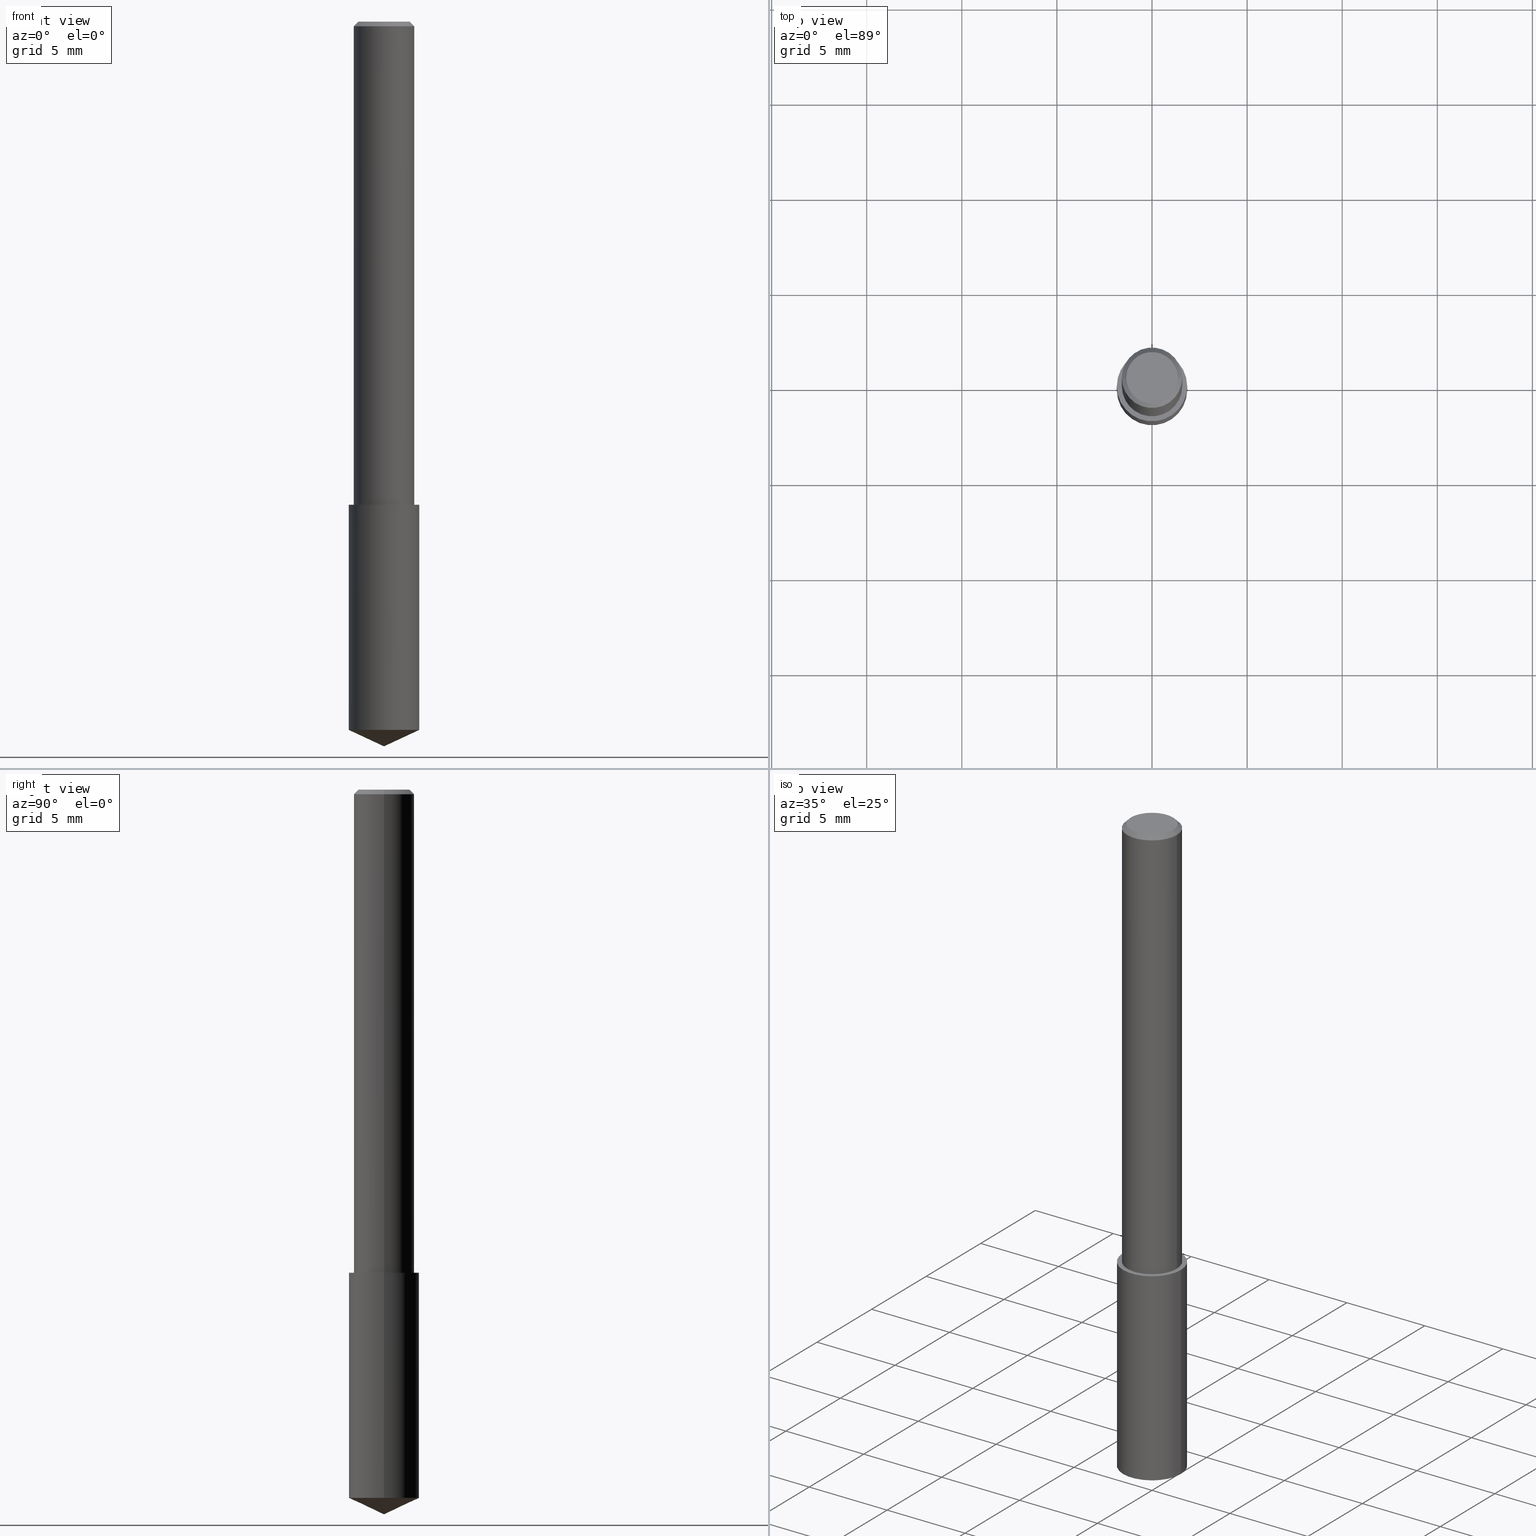
[diagram: canonical four-view strip — front | top / right | iso, engineering-drawing reading convention]
A machine part, canonical four-view strip (front | top / right | iso — engineering-drawing reading convention). The complete STEP part file that produces these views, byte-faithful:
ISO-10303-21;
HEADER;
FILE_DESCRIPTION (( 'STEP AP203' ),
    '1' );
FILE_NAME ('06084.STEP',
    '2024-04-30T18:19:50',
    ( '' ),
    ( '' ),
    'SwSTEP 2.0',
    'SolidWorks 2023',
    '' );
FILE_SCHEMA (( 'CONFIG_CONTROL_DESIGN' ));
ENDSEC;

DATA;
#1 = CARTESIAN_POINT ( 'NONE',  ( 0.000000000000000000, 0.000000000000000000, 0.000000000000000000 ) ) ;
#2 = CARTESIAN_POINT ( 'NONE',  ( 2.445468806185136877E-29, -3.491481338843145977E-15, -1.000000000000000222 ) ) ;
#3 = VECTOR ( 'NONE', #308, 39.37007874015748143 ) ;
#4 = DIRECTION ( 'NONE',  ( 1.000000000000000000, -6.982962677686266711E-15, 4.876176628004948512E-29 ) ) ;
#5 = ORIENTED_EDGE ( 'NONE', *, *, #142, .T. ) ;
#6 = ADVANCED_FACE ( 'NONE', ( #196 ), #194, .F. ) ;
#7 = VECTOR ( 'NONE', #336, 39.37007874015748143 ) ;
#8 = SECURITY_CLASSIFICATION ( '', '', #76 ) ;
#9 = EDGE_CURVE ( 'NONE', #104, #272, #112, .T. ) ;
#10 = ORIENTED_EDGE ( 'NONE', *, *, #85, .T. ) ;
#11 = EDGE_CURVE ( 'NONE', #93, #97, #141, .T. ) ;
#12 = AXIS2_PLACEMENT_3D ( 'NONE', #321, #295, #165 ) ;
#13 = VECTOR ( 'NONE', #117, 39.37007874015748854 ) ;
#14 = PRODUCT_DEFINITION_SHAPE ( 'NONE', 'NONE',  #52 ) ;
#15 = ADVANCED_FACE ( 'NONE', ( #215 ), #86, .T. ) ;
#16 = ORIENTED_EDGE ( 'NONE', *, *, #74, .F. ) ;
#17 = DIRECTION ( 'NONE',  ( -2.445468806185136597E-29, 3.491481338843145583E-15, 1.000000000000000000 ) ) ;
#18 = ORIENTED_EDGE ( 'NONE', *, *, #140, .T. ) ;
#19 = FACE_OUTER_BOUND ( 'NONE', #158, .T. ) ;
#20 = CIRCLE ( 'NONE', #213, 0.05312499999999999861 ) ;
#21 = VERTEX_POINT ( 'NONE', #154 ) ;
#22 = EDGE_CURVE ( 'NONE', #90, #272, #278, .T. ) ;
#23 = DESIGN_CONTEXT ( 'detailed design', #81, 'design' ) ;
#24 = COORDINATED_UNIVERSAL_TIME_OFFSET ( 5, 0, .BEHIND. ) ;
#25 = AXIS2_PLACEMENT_3D ( 'NONE', #312, #37, #38 ) ;
#26 = DATE_AND_TIME ( #103, #236 ) ;
#27 = DIRECTION ( 'NONE',  ( 1.000000000000000000, -6.982962677686265922E-15, 0.000000000000000000 ) ) ;
#28 = DIRECTION ( 'NONE',  ( -2.445468806185136597E-29, 3.491481338843145583E-15, 1.000000000000000000 ) ) ;
#29 = CARTESIAN_POINT ( 'NONE',  ( 0.06250000000000000000, -4.691678049070464390E-16, -0.009375000000000063838 ) ) ;
#30 = ORIENTED_EDGE ( 'NONE', *, *, #74, .T. ) ;
#31 = CARTESIAN_POINT ( 'NONE',  ( 2.292627005798581499E-31, -3.273263755165471417E-17, -0.009375000000000063838 ) ) ;
#32 = CC_DESIGN_DATE_AND_TIME_ASSIGNMENT ( #334, #233, ( #8 ) ) ;
#33 = EDGE_CURVE ( 'NONE', #108, #104, #185, .T. ) ;
#34 = AXIS2_PLACEMENT_3D ( 'NONE', #31, #60, #63 ) ;
#35 = VECTOR ( 'NONE', #128, 39.37007874015748143 ) ;
#36 = ORIENTED_EDGE ( 'NONE', *, *, #316, .T. ) ;
#37 = DIRECTION ( 'NONE',  ( -2.445468806185136597E-29, 3.491481338843145583E-15, 1.000000000000000000 ) ) ;
#38 = DIRECTION ( 'NONE',  ( 1.000000000000000000, -6.982962677686265133E-15, 0.000000000000000000 ) ) ;
#39 = DATE_AND_TIME ( #228, #149 ) ;
#40 = ORIENTED_EDGE ( 'NONE', *, *, #114, .T. ) ;
#41 = EDGE_LOOP ( 'NONE', ( #69, #243, #168, #173 ) ) ;
#42 = ADVANCED_FACE ( 'NONE', ( #178 ), #338, .T. ) ;
#43 = DIRECTION ( 'NONE',  ( -1.000000000000000000, 6.982962677686265922E-15, -4.876176775795935793E-29 ) ) ;
#44 = CARTESIAN_POINT ( 'NONE',  ( 0.06250000000000006939, -4.364351673553921624E-16, 3.047610484872463374E-30 ) ) ;
#45 = AXIS2_PLACEMENT_3D ( 'NONE', #259, #87, #83 ) ;
#46 = VECTOR ( 'NONE', #50, 39.37007874015748143 ) ;
#47 = APPROVAL ( #71, 'UNSPECIFIED' ) ;
#48 = COORDINATED_UNIVERSAL_TIME_OFFSET ( 5, 0, .BEHIND. ) ;
#49 = DIRECTION ( 'NONE',  ( 1.000000000000000000, -6.982962677686265922E-15, 0.000000000000000000 ) ) ;
#50 = DIRECTION ( 'NONE',  ( -2.445468806185136877E-29, 3.491481338843145188E-15, 1.000000000000000000 ) ) ;
#51 = DIRECTION ( 'NONE',  ( -1.000000000000000000, 6.982962677686266711E-15, 0.000000000000000000 ) ) ;
#52 = PRODUCT_DEFINITION ( 'UNKNOWN', '', #187, #23 ) ;
#53 = DATE_AND_TIME ( #152, #230 ) ;
#54 = CARTESIAN_POINT ( 'NONE',  ( 0.06250000000000012490, -3.927916506198539224E-15, -1.000000000000000222 ) ) ;
#55 = CONICAL_SURFACE ( 'NONE', #73, 84.42940631927469042, 1.134464013796317561 ) ;
#56 = MECHANICAL_CONTEXT ( 'NONE', #339, 'mechanical' ) ;
#57 = CARTESIAN_POINT ( 'NONE',  ( 2.445468806185137438E-29, -3.491481338843146371E-15, -1.000000000000000222 ) ) ;
#58 = DIRECTION ( 'NONE',  ( 1.000000000000000000, 0.000000000000000000, 0.000000000000000000 ) ) ;
#59 = CIRCLE ( 'NONE', #279, 0.07284999999999999809 ) ;
#60 = DIRECTION ( 'NONE',  ( -2.445468806185136597E-29, 3.491481338843145583E-15, 1.000000000000000000 ) ) ;
#61 = CLOSED_SHELL ( 'NONE', ( #256, #264, #195, #42, #124 ) ) ;
#62 = AXIS2_PLACEMENT_3D ( 'NONE', #190, #291, #88 ) ;
#63 = DIRECTION ( 'NONE',  ( 1.000000000000000000, -6.982962677686266711E-15, 0.000000000000000000 ) ) ;
#64 = EDGE_LOOP ( 'NONE', ( #217, #209 ) ) ;
#65 = CC_DESIGN_APPROVAL ( #340, ( #52 ) ) ;
#66 = ORIENTED_EDGE ( 'NONE', *, *, #22, .T. ) ;
#67 = EDGE_CURVE ( 'NONE', #108, #227, #268, .T. ) ;
#68 = PERSON_AND_ORGANIZATION_ROLE ( 'classification_officer' ) ;
#69 = ORIENTED_EDGE ( 'NONE', *, *, #303, .T. ) ;
#70 = CYLINDRICAL_SURFACE ( 'NONE', #139, 0.06250000000000006939 ) ;
#71 = APPROVAL_STATUS ( 'not_yet_approved' ) ;
#72 = DIRECTION ( 'NONE',  ( 2.445468806185136597E-29, -3.491481338843145583E-15, -1.000000000000000000 ) ) ;
#73 = AXIS2_PLACEMENT_3D ( 'NONE', #109, #126, #210 ) ;
#74 = EDGE_CURVE ( 'NONE', #97, #21, #299, .T. ) ;
#75 = DIRECTION ( 'NONE',  ( -2.445468806185136597E-29, 3.491481338843145583E-15, 1.000000000000000000 ) ) ;
#76 = SECURITY_CLASSIFICATION_LEVEL ( 'unclassified' ) ;
#77 = DIRECTION ( 'NONE',  ( -2.445468806185136597E-29, 3.491481338843145583E-15, 1.000000000000000000 ) ) ;
#78 = CARTESIAN_POINT ( 'NONE',  ( -3.743544432386672853E-50, 5.344789307371238476E-36, 1.530808498934197599E-21 ) ) ;
#79 = APPROVAL_ROLE ( '' ) ;
#80 = CARTESIAN_POINT ( 'NONE',  ( -0.06250000000000006939, 4.440892098500631092E-16, -3.074334431409319267E-30 ) ) ;
#81 = APPLICATION_CONTEXT ( 'configuration controlled 3d designs of mechanical parts and assemblies' ) ;
#82 = CARTESIAN_POINT ( 'NONE',  ( 2.292627005798581499E-31, -3.273263755165471417E-17, -0.009375000000000063838 ) ) ;
#83 = DIRECTION ( 'NONE',  ( 1.000000000000000000, -6.982962677686266711E-15, 4.876176775795935793E-29 ) ) ;
#84 = UNCERTAINTY_MEASURE_WITH_UNIT (LENGTH_MEASURE( 1.000000000000000082E-05 ), #262, 'distance_accuracy_value', 'NONE');
#85 = EDGE_CURVE ( 'NONE', #93, #125, #169, .T. ) ;
#86 = CYLINDRICAL_SURFACE ( 'NONE', #45, 0.06250000000000006939 ) ;
#87 = DIRECTION ( 'NONE',  ( -2.445468806185136597E-29, 3.491481338843145583E-15, 1.000000000000000000 ) ) ;
#88 = DIRECTION ( 'NONE',  ( 1.000000000000000000, -6.982962677686265922E-15, 0.000000000000000000 ) ) ;
#89 = AXIS2_PLACEMENT_3D ( 'NONE', #136, #77, #49 ) ;
#90 = VERTEX_POINT ( 'NONE', #298 ) ;
#91 = AXIS2_PLACEMENT_3D ( 'NONE', #160, #132, #27 ) ;
#92 = CC_DESIGN_APPROVAL ( #47, ( #187 ) ) ;
#93 = VERTEX_POINT ( 'NONE', #95 ) ;
#94 = ORIENTED_EDGE ( 'NONE', *, *, #85, .F. ) ;
#95 = CARTESIAN_POINT ( 'NONE',  ( 0.07285000000000002585, -5.627323427484784326E-15, -1.466029487103408746 ) ) ;
#96 = LOCAL_TIME ( 14, 19, 50.00000000000000000, #212 ) ;
#97 = VERTEX_POINT ( 'NONE', #328 ) ;
#98 = DIRECTION ( 'NONE',  ( -0.9063077870366512689, 7.915267918739013053E-15, 0.4226182617406963327 ) ) ;
#99 = APPROVAL_ROLE ( '' ) ;
#100 = ORIENTED_EDGE ( 'NONE', *, *, #140, .F. ) ;
#101 = ORIENTED_EDGE ( 'NONE', *, *, #9, .F. ) ;
#102 =( LENGTH_UNIT ( ) NAMED_UNIT ( * ) SI_UNIT ( $, .METRE. ) );
#103 = CALENDAR_DATE ( 2024, 30, 4 ) ;
#104 = VERTEX_POINT ( 'NONE', #241 ) ;
#105 = EDGE_CURVE ( 'NONE', #323, #125, #224, .T. ) ;
#106 = CIRCLE ( 'NONE', #311, 0.07285000000000001197 ) ;
#107 = PERSON_AND_ORGANIZATION ( #189, #176 ) ;
#108 = VERTEX_POINT ( 'NONE', #119 ) ;
#109 = CARTESIAN_POINT ( 'NONE',  ( -9.261009624683002666E-28, 1.322226732217803884E-13, 37.87007874015748143 ) ) ;
#110 = CALENDAR_DATE ( 2024, 30, 4 ) ;
#111 = DIRECTION ( 'NONE',  ( 1.000000000000000000, -6.982962677686266711E-15, 4.876176628004948512E-29 ) ) ;
#112 = CIRCLE ( 'NONE', #34, 0.06250000000000000000 ) ;
#113 = APPROVAL_PERSON_ORGANIZATION ( #157, #47, #150 ) ;
#114 = EDGE_CURVE ( 'NONE', #118, #104, #145, .T. ) ;
#115 = AXIS2_PLACEMENT_3D ( 'NONE', #214, #255, #282 ) ;
#116 = CC_DESIGN_PERSON_AND_ORGANIZATION_ASSIGNMENT ( #131, #156, ( #187 ) ) ;
#117 = DIRECTION ( 'NONE',  ( 0.9063077870366512689, -4.853149677051400089E-15, 0.4226182617406963327 ) ) ;
#118 = VERTEX_POINT ( 'NONE', #222 ) ;
#119 = CARTESIAN_POINT ( 'NONE',  ( -0.06250000000000012490, -1.318017778347335489E-15, -1.000000000000000222 ) ) ;
#120 = ORIENTED_EDGE ( 'NONE', *, *, #33, .F. ) ;
#121 = AXIS2_PLACEMENT_3D ( 'NONE', #1, #290, #58 ) ;
#122 = APPROVAL_STATUS ( 'not_yet_approved' ) ;
#123 = PLANE ( 'NONE',  #239 ) ;
#124 = ADVANCED_FACE ( 'NONE', ( #199 ), #219, .F. ) ;
#125 = VERTEX_POINT ( 'NONE', #305 ) ;
#126 = DIRECTION ( 'NONE',  ( -2.445468806185136597E-29, 3.491481338843145583E-15, 1.000000000000000000 ) ) ;
#127 = PERSON_AND_ORGANIZATION_ROLE ( 'design_supplier' ) ;
#128 = DIRECTION ( 'NONE',  ( -2.445468806185136877E-29, 3.491481338843145188E-15, 1.000000000000000000 ) ) ;
#129 = AXIS2_PLACEMENT_3D ( 'NONE', #164, #183, #285 ) ;
#130 = CONICAL_SURFACE ( 'NONE', #263, 0.06250000000000000000, 0.7853981633974450594 ) ;
#131 = PERSON_AND_ORGANIZATION ( #189, #176 ) ;
#132 = DIRECTION ( 'NONE',  ( -2.445468806185136597E-29, 3.491481338843145583E-15, 1.000000000000000000 ) ) ;
#133 = ADVANCED_FACE ( 'NONE', ( #202 ), #70, .T. ) ;
#134 = CARTESIAN_POINT ( 'NONE',  ( -7.487088864773345706E-50, 1.068957861474247695E-35, 3.061616997868395197E-21 ) ) ;
#135 = APPLICATION_PROTOCOL_DEFINITION ( 'international standard', 'config_control_design', 1994, #81 ) ;
#136 = CARTESIAN_POINT ( 'NONE',  ( 2.445468806185137438E-29, -3.491481338843146371E-15, -1.000000000000000222 ) ) ;
#137 = APPLICATION_PROTOCOL_DEFINITION ( 'international standard', 'config_control_design', 1994, #339 ) ;
#138 = DIRECTION ( 'NONE',  ( 1.000000000000000000, -6.982962677686264344E-15, 0.000000000000000000 ) ) ;
#139 = AXIS2_PLACEMENT_3D ( 'NONE', #171, #75, #181 ) ;
#140 = EDGE_CURVE ( 'NONE', #323, #93, #276, .T. ) ;
#141 = LINE ( 'NONE', #143, #197 ) ;
#142 = EDGE_CURVE ( 'NONE', #90, #118, #20, .T. ) ;
#143 = CARTESIAN_POINT ( 'NONE',  ( 0.07284999999999999809, -4.000190169912591050E-15, -1.000000000000000222 ) ) ;
#144 = EDGE_LOOP ( 'NONE', ( #332, #270, #40, #249 ) ) ;
#145 = LINE ( 'NONE', #175, #3 ) ;
#146 = ORIENTED_EDGE ( 'NONE', *, *, #105, .T. ) ;
#147 = CARTESIAN_POINT ( 'NONE',  ( -0.07284999999999999809, -2.973850955841913597E-15, -1.000000000000000222 ) ) ;
#148 = VECTOR ( 'NONE', #211, 39.37007874015748143 ) ;
#149 = LOCAL_TIME ( 14, 19, 50.00000000000000000, #48 ) ;
#150 = APPROVAL_ROLE ( '' ) ;
#151 = CARTESIAN_POINT ( 'NONE',  ( 2.292627005798581499E-31, -3.273263755165471417E-17, -0.009375000000000063838 ) ) ;
#152 = CALENDAR_DATE ( 2024, 30, 4 ) ;
#153 = DIMENSIONAL_EXPONENTS ( 1.000000000000000000, 0.000000000000000000, 0.000000000000000000, 0.000000000000000000, 0.000000000000000000, 0.000000000000000000, 0.000000000000000000 ) ;
#154 = CARTESIAN_POINT ( 'NONE',  ( -0.07284999999999999809, -3.787417584628009446E-15, -1.000000000000000222 ) ) ;
#155 = CARTESIAN_POINT ( 'NONE',  ( 3.668203209277704895E-29, -5.237222008264718177E-15, -1.500000000000000222 ) ) ;
#156 = PERSON_AND_ORGANIZATION_ROLE ( 'creator' ) ;
#157 = PERSON_AND_ORGANIZATION ( #189, #176 ) ;
#158 = EDGE_LOOP ( 'NONE', ( #296, #5 ) ) ;
#159 = VECTOR ( 'NONE', #98, 39.37007874015748854 ) ;
#160 = CARTESIAN_POINT ( 'NONE',  ( 2.445468806185136877E-29, -3.491481338843145977E-15, -1.000000000000000222 ) ) ;
#161 = APPROVAL_PERSON_ORGANIZATION ( #107, #247, #99 ) ;
#162 = CYLINDRICAL_SURFACE ( 'NONE', #115, 0.07284999999999999809 ) ;
#163 = EDGE_LOOP ( 'NONE', ( #100, #146, #94 ) ) ;
#164 = CARTESIAN_POINT ( 'NONE',  ( 2.445468806185137438E-29, -3.491481338843146371E-15, -1.000000000000000222 ) ) ;
#165 = DIRECTION ( 'NONE',  ( 1.000000000000000000, -6.982962677686265922E-15, 4.876176775795935793E-29 ) ) ;
#166 =( NAMED_UNIT ( * ) PLANE_ANGLE_UNIT ( ) SI_UNIT ( $, .RADIAN. ) );
#167 = CONICAL_SURFACE ( 'NONE', #62, 84.42940631927469042, 1.134464013796317561 ) ;
#168 = ORIENTED_EDGE ( 'NONE', *, *, #225, .F. ) ;
#169 = CIRCLE ( 'NONE', #25, 0.07285000000000001197 ) ;
#170 = MANIFOLD_SOLID_BREP ( 'Body-Move/Copy2[2]', #191 ) ;
#171 = CARTESIAN_POINT ( 'NONE',  ( 0.000000000000000000, 0.000000000000000000, 0.000000000000000000 ) ) ;
#172 = DATE_TIME_ROLE ( 'creation_date' ) ;
#173 = ORIENTED_EDGE ( 'NONE', *, *, #316, .F. ) ;
#174 = FACE_OUTER_BOUND ( 'NONE', #163, .T. ) ;
#175 = CARTESIAN_POINT ( 'NONE',  ( -0.06250000000000000000, 4.037025298037369491E-16, -0.009375000000000063838 ) ) ;
#176 = ORGANIZATION ( 'UNSPECIFIED', 'UNSPECIFIED', '' ) ;
#177 = COORDINATED_UNIVERSAL_TIME_OFFSET ( 5, 0, .BEHIND. ) ;
#178 = FACE_OUTER_BOUND ( 'NONE', #318, .T. ) ;
#179 = DIRECTION ( 'NONE',  ( -1.000000000000000000, 6.982962677686266711E-15, 0.000000000000000000 ) ) ;
#180 = CARTESIAN_POINT ( 'NONE',  ( 2.292627005798581499E-31, -3.273263755165471417E-17, -0.009375000000000063838 ) ) ;
#181 = DIRECTION ( 'NONE',  ( 1.000000000000000000, -6.982962677686266711E-15, 4.876176775795935793E-29 ) ) ;
#182 = ORIENTED_EDGE ( 'NONE', *, *, #292, .F. ) ;
#183 = DIRECTION ( 'NONE',  ( -2.445468806185136597E-29, 3.491481338843145583E-15, 1.000000000000000000 ) ) ;
#184 = CARTESIAN_POINT ( 'NONE',  ( 3.668203209277704895E-29, -5.237222008264718177E-15, -1.500000000000000222 ) ) ;
#185 = LINE ( 'NONE', #80, #7 ) ;
#186 = CC_DESIGN_DATE_AND_TIME_ASSIGNMENT ( #53, #172, ( #52 ) ) ;
#187 = PRODUCT_DEFINITION_FORMATION_WITH_SPECIFIED_SOURCE ( 'ANY', '', #201, .NOT_KNOWN. ) ;
#188 = ADVANCED_FACE ( 'NONE', ( #283 ), #130, .T. ) ;
#189 = PERSON ( 'UNSPECIFIED', 'UNSPECIFIED', 'UNSPECIFIED', ('UNSPECIFIED'), ('UNSPECIFIED'), ('UNSPECIFIED') ) ;
#190 = CARTESIAN_POINT ( 'NONE',  ( -9.261009624683002666E-28, 1.322226732217803884E-13, 37.87007874015748143 ) ) ;
#191 = CLOSED_SHELL ( 'NONE', ( #188, #133, #6, #15, #320, #330 ) ) ;
#192 = AXIS2_PLACEMENT_3D ( 'NONE', #134, #235, #4 ) ;
#193 = PERSON_AND_ORGANIZATION ( #189, #176 ) ;
#194 = PLANE ( 'NONE',  #12 ) ;
#195 = ADVANCED_FACE ( 'NONE', ( #337 ), #55, .T. ) ;
#196 = FACE_OUTER_BOUND ( 'NONE', #64, .T. ) ;
#197 = VECTOR ( 'NONE', #261, 39.37007874015748143 ) ;
#198 = AXIS2_PLACEMENT_3D ( 'NONE', #151, #28, #315 ) ;
#199 = FACE_OUTER_BOUND ( 'NONE', #205, .T. ) ;
#200 = EDGE_LOOP ( 'NONE', ( #231, #66, #281, #326 ) ) ;
#201 = PRODUCT ( '06084', '06084', '', ( #56 ) ) ;
#202 = FACE_OUTER_BOUND ( 'NONE', #41, .T. ) ;
#203 = CALENDAR_DATE ( 2024, 30, 4 ) ;
#204 = CARTESIAN_POINT ( 'NONE',  ( 3.585129379658981357E-29, -5.118614596415340043E-15, -1.466029487103408746 ) ) ;
#205 = EDGE_LOOP ( 'NONE', ( #30, #240 ) ) ;
#206 = FACE_OUTER_BOUND ( 'NONE', #144, .T. ) ;
#207 = DIRECTION ( 'NONE',  ( -1.000000000000000000, 6.982962677686265922E-15, -4.876176775795935793E-29 ) ) ;
#208 = CC_DESIGN_SECURITY_CLASSIFICATION ( #8, ( #187 ) ) ;
#209 = ORIENTED_EDGE ( 'NONE', *, *, #67, .F. ) ;
#210 = DIRECTION ( 'NONE',  ( 1.000000000000000000, -6.982962677686265922E-15, 0.000000000000000000 ) ) ;
#211 = DIRECTION ( 'NONE',  ( 0.7071067811865452413, -7.319954787623248157E-15, -0.7071067811865497932 ) ) ;
#212 = COORDINATED_UNIVERSAL_TIME_OFFSET ( 5, 0, .BEHIND. ) ;
#213 = AXIS2_PLACEMENT_3D ( 'NONE', #218, #314, #111 ) ;
#214 = CARTESIAN_POINT ( 'NONE',  ( 2.445468806185137438E-29, -3.491481338843146371E-15, -1.000000000000000222 ) ) ;
#215 = FACE_OUTER_BOUND ( 'NONE', #284, .T. ) ;
#216 = AXIS2_PLACEMENT_3D ( 'NONE', #57, #258, #138 ) ;
#217 = ORIENTED_EDGE ( 'NONE', *, *, #303, .F. ) ;
#218 = CARTESIAN_POINT ( 'NONE',  ( -7.487088864773345706E-50, 1.068957861474247695E-35, 3.061616997868395197E-21 ) ) ;
#219 = PLANE ( 'NONE',  #221 ) ;
#220 = ORIENTED_EDGE ( 'NONE', *, *, #310, .F. ) ;
#221 = AXIS2_PLACEMENT_3D ( 'NONE', #325, #244, #207 ) ;
#222 = CARTESIAN_POINT ( 'NONE',  ( -0.05312499999999999861, 3.873362110279099094E-16, 3.061616995216862494E-21 ) ) ;
#223 = PERSON_AND_ORGANIZATION_ROLE ( 'creator' ) ;
#224 = LINE ( 'NONE', #333, #159 ) ;
#225 = EDGE_CURVE ( 'NONE', #272, #104, #286, .T. ) ;
#226 = APPROVAL_DATE_TIME ( #39, #340 ) ;
#227 = VERTEX_POINT ( 'NONE', #54 ) ;
#228 = CALENDAR_DATE ( 2024, 30, 4 ) ;
#229 = DIRECTION ( 'NONE',  ( 2.445468806185136597E-29, -3.491481338843145583E-15, -1.000000000000000000 ) ) ;
#230 = LOCAL_TIME ( 14, 19, 50.00000000000000000, #24 ) ;
#231 = ORIENTED_EDGE ( 'NONE', *, *, #142, .F. ) ;
#232 = CC_DESIGN_PERSON_AND_ORGANIZATION_ASSIGNMENT ( #253, #127, ( #187 ) ) ;
#233 = DATE_TIME_ROLE ( 'classification_date' ) ;
#234 = FACE_OUTER_BOUND ( 'NONE', #254, .T. ) ;
#235 = DIRECTION ( 'NONE',  ( -2.445468806185136597E-29, 3.491481338843145583E-15, 1.000000000000000000 ) ) ;
#236 = LOCAL_TIME ( 14, 19, 50.00000000000000000, #177 ) ;
#237 = CC_DESIGN_PERSON_AND_ORGANIZATION_ASSIGNMENT ( #193, #257, ( #201 ) ) ;
#238 = ORIENTED_EDGE ( 'NONE', *, *, #105, .F. ) ;
#239 = AXIS2_PLACEMENT_3D ( 'NONE', #78, #246, #43 ) ;
#240 = ORIENTED_EDGE ( 'NONE', *, *, #292, .T. ) ;
#241 = CARTESIAN_POINT ( 'NONE',  ( -0.06250000000000000000, -1.318017778347336672E-15, -0.009375000000000063838 ) ) ;
#242 = ORIENTED_EDGE ( 'NONE', *, *, #11, .F. ) ;
#243 = ORIENTED_EDGE ( 'NONE', *, *, #33, .T. ) ;
#244 = DIRECTION ( 'NONE',  ( 2.438088387897960049E-29, -3.491481338843145188E-15, -1.000000000000000000 ) ) ;
#245 = ORIENTED_EDGE ( 'NONE', *, *, #310, .T. ) ;
#246 = DIRECTION ( 'NONE',  ( 2.438088387897960049E-29, -3.491481338843145188E-15, -1.000000000000000000 ) ) ;
#247 = APPROVAL ( #329, 'UNSPECIFIED' ) ;
#248 = CONICAL_SURFACE ( 'NONE', #322, 0.06250000000000000000, 0.7853981633974450594 ) ;
#249 = ORIENTED_EDGE ( 'NONE', *, *, #9, .T. ) ;
#250 = PERSON_AND_ORGANIZATION ( #189, #176 ) ;
#251 = LINE ( 'NONE', #147, #46 ) ;
#252 = CARTESIAN_POINT ( 'NONE',  ( 0.06250000000000000000, -4.615137624123754923E-16, -0.009375000000000063838 ) ) ;
#253 = PERSON_AND_ORGANIZATION ( #189, #176 ) ;
#254 = EDGE_LOOP ( 'NONE', ( #10, #274, #16, #242 ) ) ;
#255 = DIRECTION ( 'NONE',  ( -2.445468806185136597E-29, 3.491481338843145583E-15, 1.000000000000000000 ) ) ;
#256 = ADVANCED_FACE ( 'NONE', ( #234 ), #162, .T. ) ;
#257 = PERSON_AND_ORGANIZATION_ROLE ( 'design_owner' ) ;
#258 = DIRECTION ( 'NONE',  ( -2.445468806185136597E-29, 3.491481338843145583E-15, 1.000000000000000000 ) ) ;
#259 = CARTESIAN_POINT ( 'NONE',  ( 0.000000000000000000, 0.000000000000000000, 0.000000000000000000 ) ) ;
#260 = CC_DESIGN_APPROVAL ( #247, ( #8 ) ) ;
#261 = DIRECTION ( 'NONE',  ( -2.445468806185136877E-29, 3.491481338843145188E-15, 1.000000000000000000 ) ) ;
#262 =( CONVERSION_BASED_UNIT ( 'INCH', #293 ) LENGTH_UNIT ( ) NAMED_UNIT ( #153 ) );
#263 = AXIS2_PLACEMENT_3D ( 'NONE', #180, #229, #51 ) ;
#264 = ADVANCED_FACE ( 'NONE', ( #174 ), #167, .T. ) ;
#265 = PERSON_AND_ORGANIZATION ( #189, #176 ) ;
#266 = PRODUCT_RELATED_PRODUCT_CATEGORY ( 'detail', '', ( #201 ) ) ;
#267 = ORIENTED_EDGE ( 'NONE', *, *, #11, .T. ) ;
#268 = CIRCLE ( 'NONE', #129, 0.06250000000000012490 ) ;
#269 = LOCAL_TIME ( 14, 19, 50.00000000000000000, #313 ) ;
#270 = ORIENTED_EDGE ( 'NONE', *, *, #287, .F. ) ;
#271 = APPROVAL_DATE_TIME ( #280, #247 ) ;
#272 = VERTEX_POINT ( 'NONE', #29 ) ;
#273 = CC_DESIGN_PERSON_AND_ORGANIZATION_ASSIGNMENT ( #250, #223, ( #52 ) ) ;
#274 = ORIENTED_EDGE ( 'NONE', *, *, #335, .T. ) ;
#275 = DIRECTION ( 'NONE',  ( 1.000000000000000000, -6.982962677686265133E-15, 0.000000000000000000 ) ) ;
#276 = LINE ( 'NONE', #155, #13 ) ;
#277 = APPROVAL_DATE_TIME ( #26, #47 ) ;
#278 = LINE ( 'NONE', #252, #148 ) ;
#279 = AXIS2_PLACEMENT_3D ( 'NONE', #2, #317, #289 ) ;
#280 = DATE_AND_TIME ( #203, #96 ) ;
#281 = ORIENTED_EDGE ( 'NONE', *, *, #225, .T. ) ;
#282 = DIRECTION ( 'NONE',  ( 1.000000000000000000, -6.982962677686265922E-15, 0.000000000000000000 ) ) ;
#283 = FACE_OUTER_BOUND ( 'NONE', #200, .T. ) ;
#284 = EDGE_LOOP ( 'NONE', ( #120, #324, #36, #101 ) ) ;
#285 = DIRECTION ( 'NONE',  ( 1.000000000000000000, -6.982962677686264344E-15, 0.000000000000000000 ) ) ;
#286 = CIRCLE ( 'NONE', #198, 0.06250000000000000000 ) ;
#287 = EDGE_CURVE ( 'NONE', #118, #90, #327, .T. ) ;
#288 = MANIFOLD_SOLID_BREP ( 'Body-Move/Copy2[1]', #61 ) ;
#289 = DIRECTION ( 'NONE',  ( 1.000000000000000000, -6.982962677686265922E-15, 0.000000000000000000 ) ) ;
#290 = DIRECTION ( 'NONE',  ( 0.000000000000000000, 0.000000000000000000, 1.000000000000000000 ) ) ;
#291 = DIRECTION ( 'NONE',  ( -2.445468806185136597E-29, 3.491481338843145583E-15, 1.000000000000000000 ) ) ;
#292 = EDGE_CURVE ( 'NONE', #21, #97, #59, .T. ) ;
#293 = LENGTH_MEASURE_WITH_UNIT ( LENGTH_MEASURE( 0.02539999999999999897 ), #102 );
#294 = CC_DESIGN_PERSON_AND_ORGANIZATION_ASSIGNMENT ( #331, #68, ( #8 ) ) ;
#295 = DIRECTION ( 'NONE',  ( -2.438088387897960049E-29, 3.491481338843145188E-15, 1.000000000000000000 ) ) ;
#296 = ORIENTED_EDGE ( 'NONE', *, *, #287, .T. ) ;
#297 = APPROVAL_PERSON_ORGANIZATION ( #265, #340, #79 ) ;
#298 = CARTESIAN_POINT ( 'NONE',  ( 0.05312499999999999861, -4.129888592719939842E-16, 3.061617000609493422E-21 ) ) ;
#299 = CIRCLE ( 'NONE', #91, 0.07284999999999999809 ) ;
#300 = ORIENTED_EDGE ( 'NONE', *, *, #335, .F. ) ;
#301 =( GEOMETRIC_REPRESENTATION_CONTEXT ( 3 ) GLOBAL_UNCERTAINTY_ASSIGNED_CONTEXT ( ( #84 ) ) GLOBAL_UNIT_ASSIGNED_CONTEXT ( ( #262, #166, #319 ) ) REPRESENTATION_CONTEXT ( 'NONE', 'WORKASPACE' ) );
#302 = CIRCLE ( 'NONE', #216, 0.06250000000000012490 ) ;
#303 = EDGE_CURVE ( 'NONE', #227, #108, #302, .T. ) ;
#304 = EDGE_LOOP ( 'NONE', ( #238, #18, #220 ) ) ;
#305 = CARTESIAN_POINT ( 'NONE',  ( -0.07285000000000002585, -4.600984213414106479E-15, -1.466029487103408746 ) ) ;
#306 = ADVANCED_BREP_SHAPE_REPRESENTATION ( '06084', ( #288, #170, #121 ), #301 ) ;
#307 = LINE ( 'NONE', #44, #35 ) ;
#308 = DIRECTION ( 'NONE',  ( -0.7071067811865452413, 2.468850131082233000E-15, -0.7071067811865497932 ) ) ;
#309 = SHAPE_DEFINITION_REPRESENTATION ( #14, #306 ) ;
#310 = EDGE_CURVE ( 'NONE', #125, #93, #106, .T. ) ;
#311 = AXIS2_PLACEMENT_3D ( 'NONE', #204, #17, #275 ) ;
#312 = CARTESIAN_POINT ( 'NONE',  ( 3.585129379658981357E-29, -5.118614596415340043E-15, -1.466029487103408746 ) ) ;
#313 = COORDINATED_UNIVERSAL_TIME_OFFSET ( 5, 0, .BEHIND. ) ;
#314 = DIRECTION ( 'NONE',  ( -2.445468806185136597E-29, 3.491481338843145583E-15, 1.000000000000000000 ) ) ;
#315 = DIRECTION ( 'NONE',  ( 1.000000000000000000, -6.982962677686266711E-15, 0.000000000000000000 ) ) ;
#316 = EDGE_CURVE ( 'NONE', #227, #272, #307, .T. ) ;
#317 = DIRECTION ( 'NONE',  ( -2.445468806185136597E-29, 3.491481338843145583E-15, 1.000000000000000000 ) ) ;
#318 = EDGE_LOOP ( 'NONE', ( #300, #245, #267, #182 ) ) ;
#319 =( NAMED_UNIT ( * ) SI_UNIT ( $, .STERADIAN. ) SOLID_ANGLE_UNIT ( ) );
#320 = ADVANCED_FACE ( 'NONE', ( #206 ), #248, .T. ) ;
#321 = CARTESIAN_POINT ( 'NONE',  ( 2.445468806185137438E-29, -3.491481338843146371E-15, -1.000000000000000222 ) ) ;
#322 = AXIS2_PLACEMENT_3D ( 'NONE', #82, #72, #179 ) ;
#323 = VERTEX_POINT ( 'NONE', #184 ) ;
#324 = ORIENTED_EDGE ( 'NONE', *, *, #67, .T. ) ;
#325 = CARTESIAN_POINT ( 'NONE',  ( 3.754761364927049476E-29, -1.616499874420178716E-15, -1.000000000000000222 ) ) ;
#326 = ORIENTED_EDGE ( 'NONE', *, *, #114, .F. ) ;
#327 = CIRCLE ( 'NONE', #192, 0.05312499999999999861 ) ;
#328 = CARTESIAN_POINT ( 'NONE',  ( 0.07284999999999999809, -4.000190169912590261E-15, -1.000000000000000222 ) ) ;
#329 = APPROVAL_STATUS ( 'not_yet_approved' ) ;
#330 = ADVANCED_FACE ( 'NONE', ( #19 ), #123, .F. ) ;
#331 = PERSON_AND_ORGANIZATION ( #189, #176 ) ;
#332 = ORIENTED_EDGE ( 'NONE', *, *, #22, .F. ) ;
#333 = CARTESIAN_POINT ( 'NONE',  ( 3.668203209277704895E-29, -5.237222008264718177E-15, -1.500000000000000222 ) ) ;
#334 = DATE_AND_TIME ( #110, #269 ) ;
#335 = EDGE_CURVE ( 'NONE', #125, #21, #251, .T. ) ;
#336 = DIRECTION ( 'NONE',  ( -2.445468806185136877E-29, 3.491481338843145188E-15, 1.000000000000000000 ) ) ;
#337 = FACE_OUTER_BOUND ( 'NONE', #304, .T. ) ;
#338 = CYLINDRICAL_SURFACE ( 'NONE', #89, 0.07284999999999999809 ) ;
#339 = APPLICATION_CONTEXT ( 'configuration controlled 3d designs of mechanical parts and assemblies' ) ;
#340 = APPROVAL ( #122, 'UNSPECIFIED' ) ;
ENDSEC;
END-ISO-10303-21;
